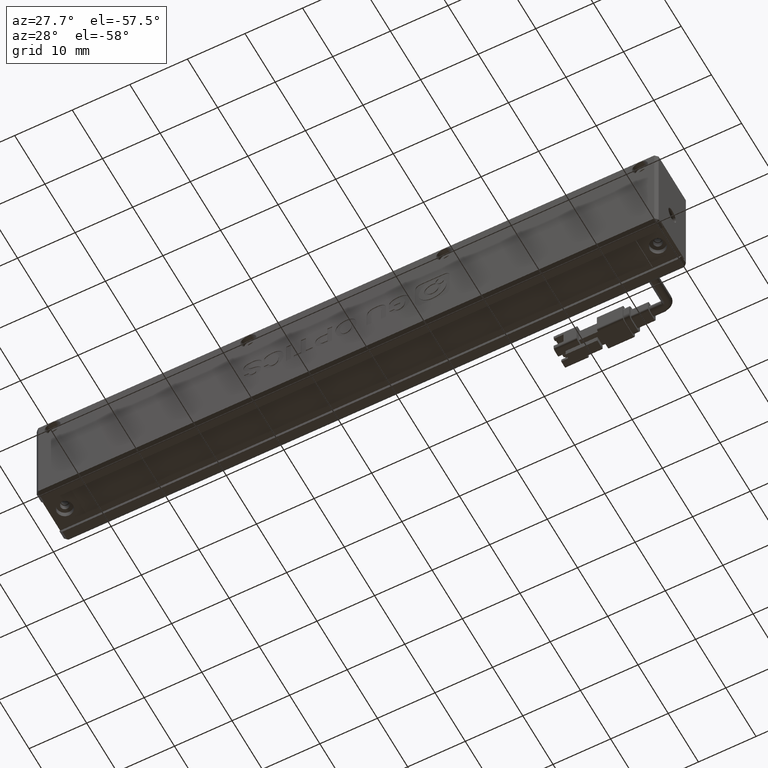
[diagram: clean part render]
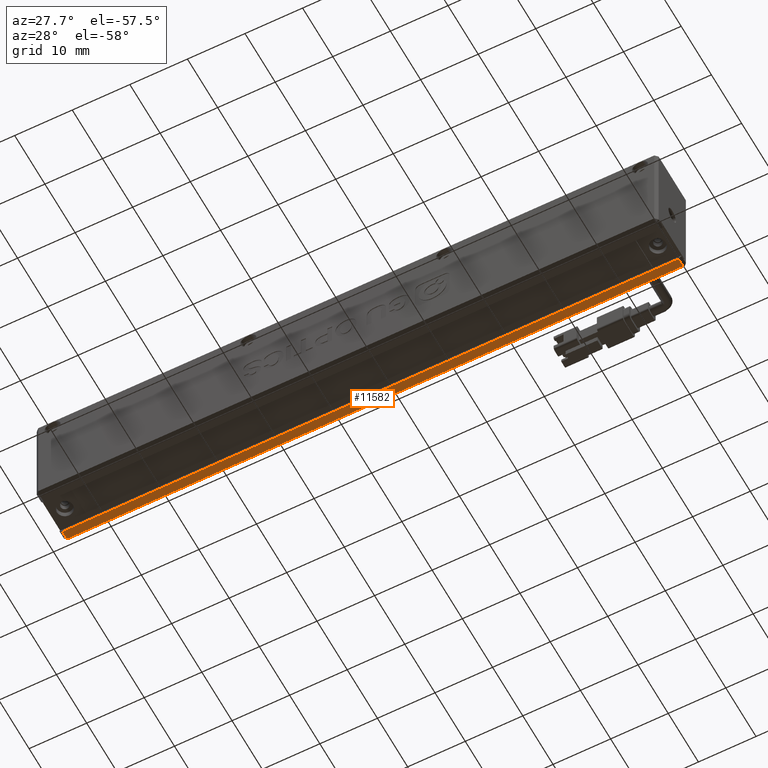
[diagram: same view with one face highlighted and labeled with its STEP entity id]
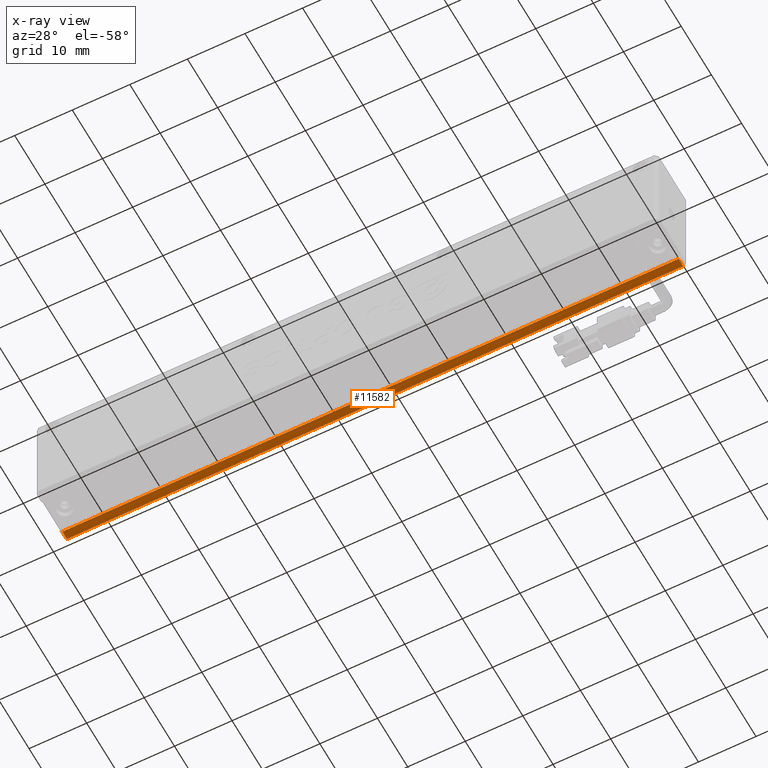
[diagram: x-ray of the same camera — body ghosted, the highlighted face saturated]
A machine part, auxiliary view. The second image highlights one B-rep face of the part: STEP entity #11582.
The next image is the same camera in x-ray: the body ghosted, the highlighted face saturated — about 0% of this face is hidden behind the body in this view.
In plain terms, the highlighted planar face has unit normal (0, 0, -1).
Its self-contained STEP definition (entity closure, byte-faithful):
#289 = ORIENTED_EDGE ( 'NONE', *, *, #14576, .T. ) ;
#317 = PLANE ( 'NONE',  #20557 ) ;
#656 = VECTOR ( 'NONE', #1457, 1000.000000000000000 ) ;
#1457 = DIRECTION ( 'NONE',  ( -0.0000000000000000000, -1.000000000000000000, -0.0000000000000000000 ) ) ;
#1719 = VERTEX_POINT ( 'NONE', #5453 ) ;
#2235 = LINE ( 'NONE', #15852, #12692 ) ;
#2271 = CARTESIAN_POINT ( 'NONE',  ( 69.41164417057899500, 8.321478873239428300, -9.000000000000012400 ) ) ;
#2303 = FACE_OUTER_BOUND ( 'NONE', #11895, .T. ) ;
#2375 = ORIENTED_EDGE ( 'NONE', *, *, #3214, .T. ) ;
#2723 = LINE ( 'NONE', #18113, #656 ) ;
#3214 = EDGE_CURVE ( 'NONE', #12184, #20404, #2723, .T. ) ;
#3985 = EDGE_CURVE ( 'NONE', #12184, #15347, #9231, .T. ) ;
#5291 = DIRECTION ( 'NONE',  ( 0.0000000000000000000, 0.0000000000000000000, -1.000000000000000000 ) ) ;
#5453 = CARTESIAN_POINT ( 'NONE',  ( -37.58835582942096200, 8.321478873239428300, -9.000000000000003600 ) ) ;
#8076 = EDGE_CURVE ( 'NONE', #20404, #1719, #2235, .T. ) ;
#8214 = ORIENTED_EDGE ( 'NONE', *, *, #8076, .T. ) ;
#8563 = CARTESIAN_POINT ( 'NONE',  ( 69.91164417057902400, 10.32147887323943000, -9.000000000000001800 ) ) ;
#9231 = LINE ( 'NONE', #18205, #16524 ) ;
#9365 = CARTESIAN_POINT ( 'NONE',  ( 69.41164417057902400, 9.821478873239415800, -9.000000000000007100 ) ) ;
#9498 = ORIENTED_EDGE ( 'NONE', *, *, #3985, .F. ) ;
#10653 = DIRECTION ( 'NONE',  ( -1.000000000000000000, -0.0000000000000000000, -0.0000000000000000000 ) ) ;
#11459 = DIRECTION ( 'NONE',  ( -1.000000000000000000, 0.0000000000000000000, -0.0000000000000000000 ) ) ;
#11547 = VECTOR ( 'NONE', #15719, 1000.000000000000000 ) ;
#11582 = ADVANCED_FACE ( 'NONE', ( #2303 ), #317, .T. ) ;
#11895 = EDGE_LOOP ( 'NONE', ( #8214, #289, #9498, #2375 ) ) ;
#12184 = VERTEX_POINT ( 'NONE', #9365 ) ;
#12692 = VECTOR ( 'NONE', #10653, 1000.000000000000000 ) ;
#13392 = DIRECTION ( 'NONE',  ( -1.000000000000000000, 0.0000000000000000000, -0.0000000000000000000 ) ) ;
#14178 = CARTESIAN_POINT ( 'NONE',  ( -37.58835582942096200, 10.32147887323943000, -9.000000000000001800 ) ) ;
#14576 = EDGE_CURVE ( 'NONE', #1719, #15347, #16242, .T. ) ;
#15347 = VERTEX_POINT ( 'NONE', #16623 ) ;
#15719 = DIRECTION ( 'NONE',  ( 0.0000000000000000000, 1.000000000000000000, 0.0000000000000000000 ) ) ;
#15852 = CARTESIAN_POINT ( 'NONE',  ( -32.08835582942099800, 8.321478873239424700, -9.000000000000010700 ) ) ;
#16242 = LINE ( 'NONE', #14178, #11547 ) ;
#16524 = VECTOR ( 'NONE', #11459, 1000.000000000000000 ) ;
#16623 = CARTESIAN_POINT ( 'NONE',  ( -37.58835582942096200, 9.821478873239415800, -9.000000000000001800 ) ) ;
#18113 = CARTESIAN_POINT ( 'NONE',  ( 69.41164417057902400, 10.32147887323943000, -9.000000000000001800 ) ) ;
#18205 = CARTESIAN_POINT ( 'NONE',  ( -38.08835582942097600, 9.821478873239415800, -9.000000000000001800 ) ) ;
#20404 = VERTEX_POINT ( 'NONE', #2271 ) ;
#20557 = AXIS2_PLACEMENT_3D ( 'NONE', #8563, #5291, #13392 ) ;